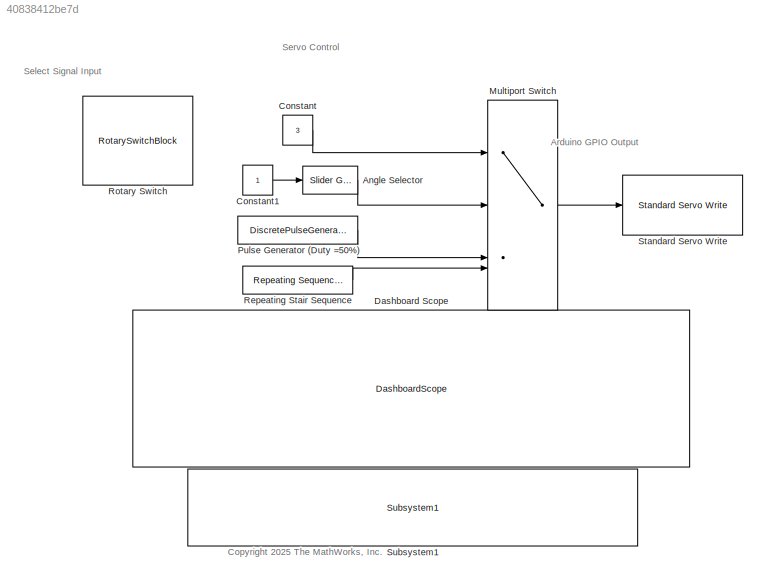
MODEL slx_40838412be7d
KIND model
CONFIG AbsTol = auto
CONFIG EnableMultiTasking = on
CONFIG FixedStep = auto
CONFIG MaxStep = auto
CONFIG MinStep = auto
CONFIG RelTol = 1e-3
CONFIG SampleTimeConstraint = Unconstrained
CONFIG SolverName = ode45
CONFIG StartTime = 0.0
CONFIG StopTime = 10.0
BLOCK [Reference] Angle Selector  REF=simulink/Math
Operations/Slider
Gain
  SourceBlock = simulink/Math\nOperations/Slider\nGain
  SourceType = Slider Gain
BLOCK [Constant] Constant
  Value = 3
BLOCK [Constant] Constant1
BLOCK [DashboardScope] Dashboard Scope
  Ymax = 180
  Ymin = 0
BLOCK [MultiPortSwitch] Multiport Switch
  InputSameDT = off
  SaturateOnIntegerOverflow = off
BLOCK [DiscretePulseGenerator] Pulse Generator (Duty =50%)
  Amplitude = 180
  Period = 1
  PulseType = Time based
  PulseWidth = 50
BLOCK [Reference] Repeating Stair Sequence  REF=simulink/Sources/Repeating
Sequence
Stair
  SourceBlock = simulink/Sources/Repeating\nSequence\nStair
  SourceType = Repeating Sequence Stair
BLOCK [RotarySwitchBlock] Rotary Switch
  LabelPosition = Hide
BLOCK [Reference] Standard Servo Write  REF=arduinolib/Standard Servo Write
  SourceBlock = arduinolib/Standard Servo Write
  SourceType = Arduino Standard Servo Write
BLOCK [Reference] Subsystem1  REF=realtime_examples_misc/Subsystem1
  SourceBlock = realtime_examples_misc/Subsystem1
ANNOTATION (root): Arduino GPIO Output
ANNOTATION (root): <copyright redacted>
ANNOTATION (root): Select Signal Input
ANNOTATION (root): Servo Control
LINE Angle Selector:1 -> Multiport Switch:2
LINE Constant1:1 -> Angle Selector:1
LINE Constant:1 -> Multiport Switch:1
LINE Multiport Switch:1 -> Standard Servo Write:1
LINE Pulse Generator (Duty =50%):1 -> Multiport Switch:3
LINE Repeating Stair Sequence:1 -> Multiport Switch:4
